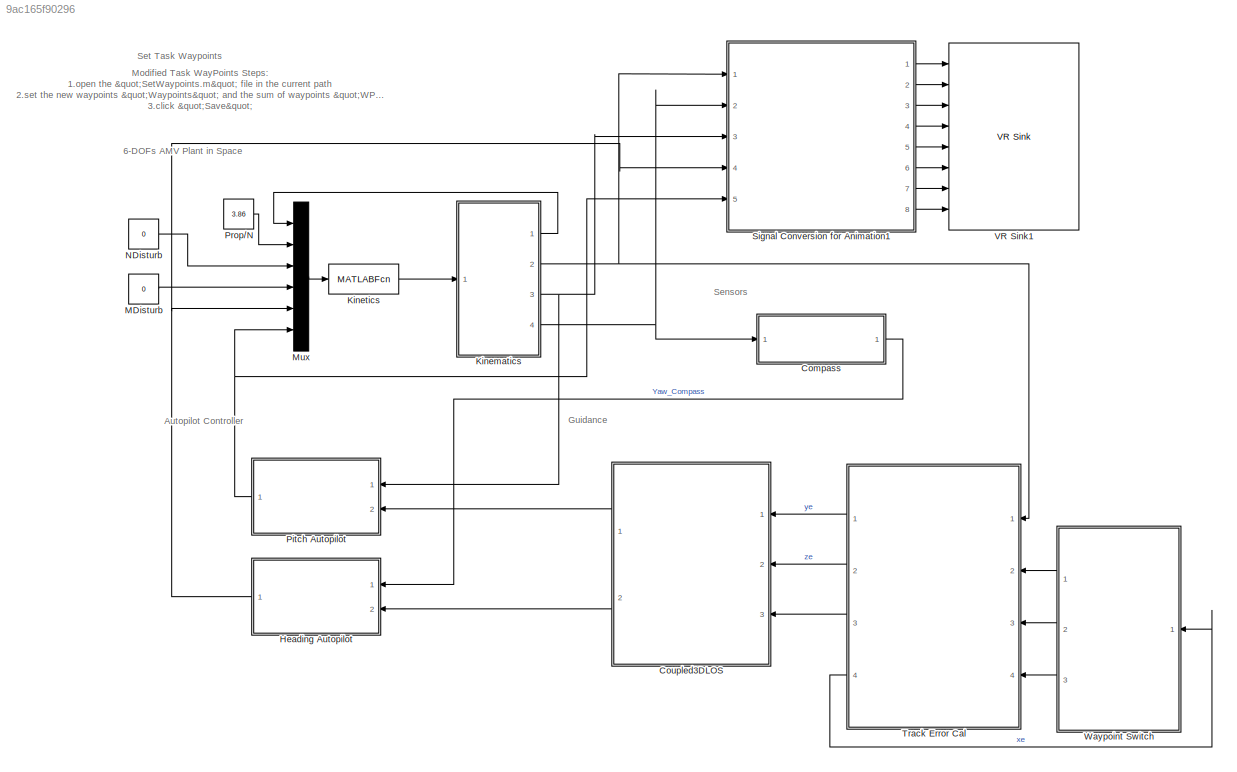
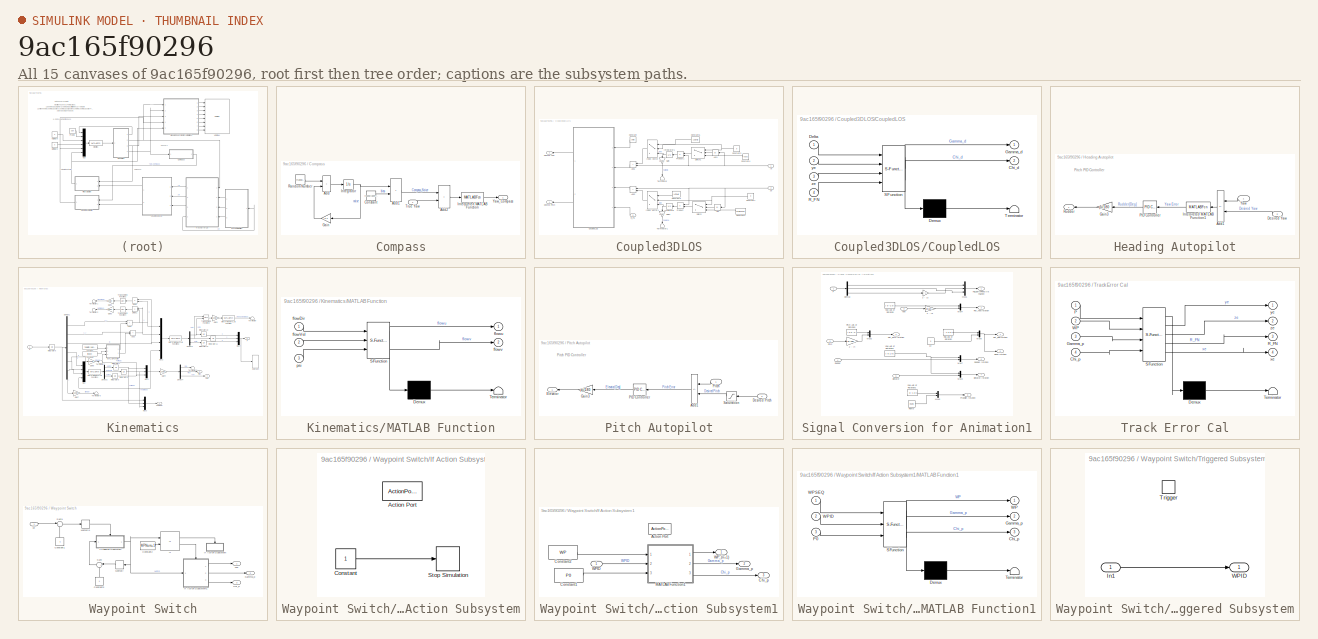
[diagram: thumbnail index - all 15 canvases of the model, root first then tree order]
MODEL slx_9ac165f90296
KIND model
CONFIG AbsTol = auto
CONFIG EnableMultiTasking = off
CONFIG FixedStep = 0.05
CONFIG InitFcn = initModelParam;\nSetWaypoints;
CONFIG MaxStep = auto
CONFIG MinStep = auto
CONFIG RelTol = 1e-3
CONFIG SampleTimeConstraint = Unconstrained
CONFIG SolverName = ode4
CONFIG StartTime = 0.0
CONFIG StopFcn = plotCoupled3DTrack;
CONFIG StopTime = inf
BLOCK [SubSystem] Compass
  Ports = [1, 1]
  RequestExecContextInheritance = off
BLOCK [Sum] Compass/Add
  IconShape = rectangular
  Ports = [2, 1]
BLOCK [Sum] Compass/Add1
  IconShape = rectangular
  Ports = [2, 1]
BLOCK [Sum] Compass/Add2
  IconShape = rectangular
  Ports = [2, 1]
BLOCK [Constant] Compass/Constant
  Value = round(rand*20-10)
BLOCK [Gain] Compass/Gain
  Gain = -0.2
  NameLocation = top
BLOCK [Integrator] Compass/Integrator
  Ports = [1, 1]
BLOCK [MATLABFcn] Compass/Interpreted MATLAB Function
  MATLABFcn = OrientationDegSat
  Ports = [1, 1]
BLOCK [RandomNumber] Compass/Random Number
  SampleTime = 1
  Seed = round(rand*20)
  Variance = 0.05
BLOCK [Inport] Compass/True Yaw
BLOCK [Outport] Compass/Yaw_Compass
BLOCK [SubSystem] Coupled3DLOS
  NameLocation = top
  Ports = [3, 2]
  RequestExecContextInheritance = off
BLOCK [Abs] Coupled3DLOS/Abs
  NameLocation = top
  SaturateOnIntegerOverflow = off
BLOCK [Abs] Coupled3DLOS/Abs1
  NameLocation = top
  SaturateOnIntegerOverflow = off
BLOCK [Sum] Coupled3DLOS/Add1
  IconShape = rectangular
  NameLocation = top
  Ports = [2, 1]
BLOCK [Sum] Coupled3DLOS/Add2
  IconShape = rectangular
  NameLocation = top
  Ports = [2, 1]
BLOCK [Constant] Coupled3DLOS/Constant
  NameLocation = top
  Value = Delta
BLOCK [Constant] Coupled3DLOS/Constant1
  NameLocation = top
  Value = 0
BLOCK [Constant] Coupled3DLOS/Constant2
  NameLocation = top
  Value = Gamma
BLOCK [Constant] Coupled3DLOS/Constant3
  NameLocation = top
  Value = 0
BLOCK [Constant] Coupled3DLOS/Constant4
  NameLocation = top
  Value = Kapa
BLOCK [Constant] Coupled3DLOS/Constant5
  NameLocation = top
  Value = LOSAlg
BLOCK [Constant] Coupled3DLOS/Constant6
  NameLocation = top
  Value = LOSAlg
BLOCK [SubSystem] Coupled3DLOS/CoupledLOS
  ErrorFcn = Stateflow.Translate.translate
  PermitHierarchicalResolution = ExplicitOnly
  Ports = [4, 2]
  RequestExecContextInheritance = off
  SFBlockType = MATLAB Function
  TreatAsAtomicUnit = on
BLOCK [Demux] Coupled3DLOS/CoupledLOS/ Demux 
  Outputs = 1
  Ports = [1, 1]
BLOCK [S-Function] Coupled3DLOS/CoupledLOS/ SFunction 
  EnableBusSupport = on
  FunctionName = sf_sfun
  PortCounts = [4 3]
  Ports = [4, 3]
  SFcnIsStateOwnerBlock = off
  SFunctionDeploymentMode = off
  Tag = Stateflow S-Function 6
BLOCK [Terminator] Coupled3DLOS/CoupledLOS/ Terminator 
BLOCK [Outport] Coupled3DLOS/CoupledLOS/Chi_d
  Port = 2
BLOCK [Inport] Coupled3DLOS/CoupledLOS/Delta
BLOCK [Outport] Coupled3DLOS/CoupledLOS/Gamma_d
BLOCK [Inport] Coupled3DLOS/CoupledLOS/R_FN
  Port = 4
BLOCK [Inport] Coupled3DLOS/CoupledLOS/ye
  Port = 2
BLOCK [Inport] Coupled3DLOS/CoupledLOS/ze
  Port = 3
BLOCK [Outport] Coupled3DLOS/Desired Pitch
BLOCK [Outport] Coupled3DLOS/Desired Yaw
  Port = 2
BLOCK [Gain] Coupled3DLOS/Gain
  Gain = -180/pi/Delta
  NameLocation = left
BLOCK [Gain] Coupled3DLOS/Gain1
  Gain = -180/pi/Delta
  NameLocation = left
BLOCK [MultiPortSwitch] Coupled3DLOS/Index Vector
  InputSameDT = off
  Inputs = 2
  NameLocation = top
  Ports = [3, 1]
  SaturateOnIntegerOverflow = off
BLOCK [MultiPortSwitch] Coupled3DLOS/Index Vector1
  InputSameDT = off
  Inputs = 2
  NameLocation = top
  Ports = [3, 1]
  SaturateOnIntegerOverflow = off
BLOCK [Integrator] Coupled3DLOS/Integrator
  NameLocation = top
  Ports = [1, 1]
BLOCK [Integrator] Coupled3DLOS/Integrator1
  NameLocation = top
  Ports = [1, 1]
BLOCK [Product] Coupled3DLOS/Product
  NameLocation = top
  Ports = [2, 1]
BLOCK [Product] Coupled3DLOS/Product1
  NameLocation = top
  Ports = [2, 1]
BLOCK [Inport] Coupled3DLOS/R_FN
  Port = 3
BLOCK [Switch] Coupled3DLOS/Switch
  Criteria = u2 > Threshold
  InputSameDT = off
  NameLocation = top
  SaturateOnIntegerOverflow = off
  Threshold = 0.5
BLOCK [Switch] Coupled3DLOS/Switch1
  Criteria = u2 > Threshold
  InputSameDT = off
  NameLocation = top
  SaturateOnIntegerOverflow = off
  Threshold = 1
BLOCK [Terminator] Coupled3DLOS/Terminator
  NameLocation = left
BLOCK [Terminator] Coupled3DLOS/Terminator1
  NameLocation = left
BLOCK [Inport] Coupled3DLOS/ye
BLOCK [Inport] Coupled3DLOS/ze
  Port = 2
BLOCK [SubSystem] Heading Autopilot
  Ports = [2, 1]
  RequestExecContextInheritance = off
BLOCK [Sum] Heading Autopilot/Add1
  IconShape = rectangular
  Inputs = -+
  NameLocation = top
  Ports = [2, 1]
BLOCK [Inport] Heading Autopilot/Desired Yaw
  Port = 2
BLOCK [Gain] Heading Autopilot/Gain3
  Gain = pi/180
  NameLocation = top
BLOCK [MATLABFcn] Heading Autopilot/Interpreted MATLAB Function1
  MATLABFcn = OrientationErrorDegSat
  NameLocation = top
  OutputDimensions = 1
  Ports = [1, 1]
BLOCK [Reference] Heading Autopilot/PID Controller  REF=pid_lib/PID Controller
  NameLocation = top
  Ports = [1, 1]
  SourceBlock = pid_lib/PID Controller
  SourceProductBaseCode = SL
  SourceType = PID 1dof
BLOCK [Outport] Heading Autopilot/Rudder
  NameLocation = top
BLOCK [Inport] Heading Autopilot/Yaw
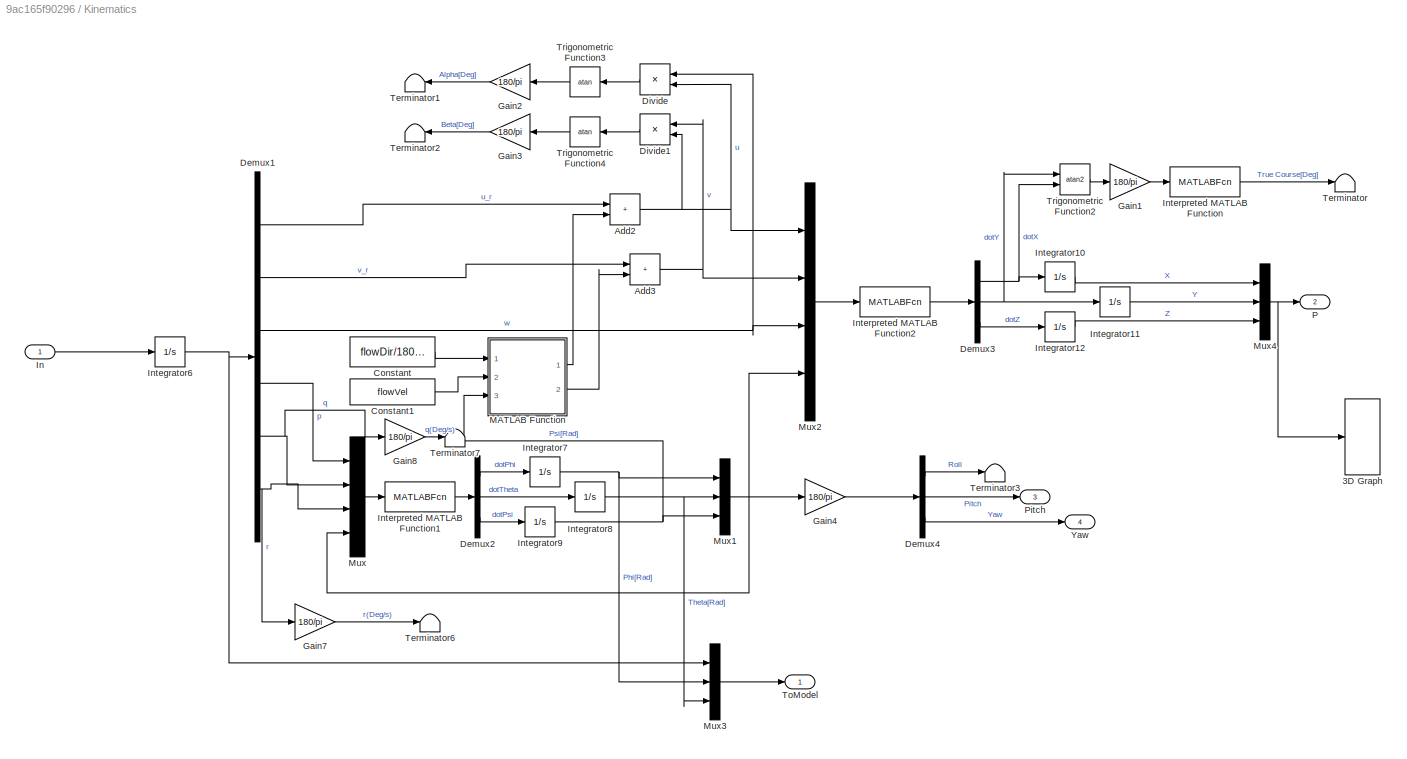
BLOCK [SubSystem] Kinematics
  Ports = [1, 4]
  RequestExecContextInheritance = off
BLOCK [S-Function] Kinematics/3D Graph
  CopyFcn = if exist('sfun3d','file'), sfun3d([],[],[],'CopyBlock'); end
  DeleteFcn = if exist('sfun3d','file'), sfun3d([],[],[],'DeleteBlock'); end
  EnableBusSupport = off
  FunctionName = sfun3d
  LoadFcn = if exist('sfun3d','file'), sfun3d([],[],[],'LoadBlock'); end
  NameChangeFcn = if exist('sfun3d','file'), sfun3d([],[],[],'NameChange'); end
  Parameters = ax,T,np,cp,gd,ls,mk,mx,hd,tb
  Ports = [1]
  SFcnIsStateOwnerBlock = off
  SFunctionDeploymentMode = off
BLOCK [Sum] Kinematics/Add2
  IconShape = rectangular
  Ports = [2, 1]
BLOCK [Sum] Kinematics/Add3
  IconShape = rectangular
  Ports = [2, 1]
BLOCK [Constant] Kinematics/Constant
  Value = flowDir/180*pi
BLOCK [Constant] Kinematics/Constant1
  Value = flowVel
BLOCK [Demux] Kinematics/Demux1
  Outputs = 6
  Ports = [1, 6]
BLOCK [Demux] Kinematics/Demux2
  Outputs = 3
  Ports = [1, 3]
BLOCK [Demux] Kinematics/Demux3
  Outputs = 3
  Ports = [1, 3]
BLOCK [Demux] Kinematics/Demux4
  Outputs = 3
  Ports = [1, 3]
BLOCK [Product] Kinematics/Divide
  Inputs = */
  NameLocation = top
  Ports = [2, 1]
BLOCK [Product] Kinematics/Divide1
  Inputs = */
  NameLocation = top
  Ports = [2, 1]
BLOCK [Gain] Kinematics/Gain1
  Gain = 180/pi
BLOCK [Gain] Kinematics/Gain2
  Gain = 180/pi
  NameLocation = top
BLOCK [Gain] Kinematics/Gain3
  Gain = 180/pi
  NameLocation = top
BLOCK [Gain] Kinematics/Gain4
  Gain = 180/pi
BLOCK [Gain] Kinematics/Gain7
  Gain = 180/pi
BLOCK [Gain] Kinematics/Gain8
  Gain = 180/pi
BLOCK [Inport] Kinematics/In
BLOCK [Integrator] Kinematics/Integrator10
  InitialCondition = x0
  Ports = [1, 1]
BLOCK [Integrator] Kinematics/Integrator11
  InitialCondition = y0
  Ports = [1, 1]
BLOCK [Integrator] Kinematics/Integrator12
  InitialCondition = z0
  Ports = [1, 1]
BLOCK [Integrator] Kinematics/Integrator6
  InitialCondition = [u0; 0; 0; 0; 0; 0]
  Ports = [1, 1]
BLOCK [Integrator] Kinematics/Integrator7
  Ports = [1, 1]
BLOCK [Integrator] Kinematics/Integrator8
  InitialCondition = pitch0/180*pi
  Ports = [1, 1]
BLOCK [Integrator] Kinematics/Integrator9
  InitialCondition = yaw0*pi/180
  Ports = [1, 1]
  WrapState = on
  WrappedStateLowerValue = 0
  WrappedStateUpperValue = 6.2832
BLOCK [MATLABFcn] Kinematics/Interpreted MATLAB Function
  MATLABFcn = OrientationDegSat
  Ports = [1, 1]
BLOCK [MATLABFcn] Kinematics/Interpreted MATLAB Function1
  MATLABFcn = TMatrix
  OutputDimensions = 3
  Ports = [1, 1]
BLOCK [MATLABFcn] Kinematics/Interpreted MATLAB Function2
  MATLABFcn = RMatrix
  OutputDimensions = 3
  Ports = [1, 1]
BLOCK [SubSystem] Kinematics/MATLAB Function
  ErrorFcn = Stateflow.Translate.translate
  PermitHierarchicalResolution = ExplicitOnly
  Ports = [3, 2]
  RequestExecContextInheritance = off
  SFBlockType = MATLAB Function
  TreatAsAtomicUnit = on
BLOCK [Demux] Kinematics/MATLAB Function/ Demux 
  Outputs = 1
  Ports = [1, 1]
BLOCK [S-Function] Kinematics/MATLAB Function/ SFunction 
  EnableBusSupport = on
  FunctionName = sf_sfun
  PortCounts = [3 3]
  Ports = [3, 3]
  SFcnIsStateOwnerBlock = off
  SFunctionDeploymentMode = off
  Tag = Stateflow S-Function 3
BLOCK [Terminator] Kinematics/MATLAB Function/ Terminator 
BLOCK [Inport] Kinematics/MATLAB Function/flowDir
BLOCK [Inport] Kinematics/MATLAB Function/flowVel
  Port = 2
BLOCK [Outport] Kinematics/MATLAB Function/flowu
BLOCK [Outport] Kinematics/MATLAB Function/flowv
  Port = 2
BLOCK [Inport] Kinematics/MATLAB Function/psi
  Port = 3
BLOCK [Mux] Kinematics/Mux
  DisplayOption = bar
  Ports = [4, 1]
BLOCK [Mux] Kinematics/Mux1
  DisplayOption = bar
  Inputs = 3
  Ports = [3, 1]
BLOCK [Mux] Kinematics/Mux2
  DisplayOption = bar
  Ports = [4, 1]
BLOCK [Mux] Kinematics/Mux3
  DisplayOption = bar
  Inputs = 3
  Ports = [3, 1]
BLOCK [Mux] Kinematics/Mux4
  DisplayOption = bar
  Inputs = 3
  Ports = [3, 1]
BLOCK [Outport] Kinematics/P
  Port = 2
BLOCK [Outport] Kinematics/Pitch
  Port = 3
BLOCK [Terminator] Kinematics/Terminator
BLOCK [Terminator] Kinematics/Terminator1
  NameLocation = top
BLOCK [Terminator] Kinematics/Terminator2
  NameLocation = top
BLOCK [Terminator] Kinematics/Terminator3
BLOCK [Terminator] Kinematics/Terminator6
BLOCK [Terminator] Kinematics/Terminator7
BLOCK [Outport] Kinematics/ToModel
BLOCK [Trigonometry] Kinematics/Trigonometric Function2
  Operator = atan2
  Ports = [2, 1]
BLOCK [Trigonometry] Kinematics/Trigonometric Function3
  NameLocation = top
  Operator = atan
  Ports = [1, 1]
BLOCK [Trigonometry] Kinematics/Trigonometric Function4
  NameLocation = top
  Operator = atan
  Ports = [1, 1]
BLOCK [Outport] Kinematics/Yaw
  Port = 4
BLOCK [MATLABFcn] Kinetics
  MATLABFcn = AuvMathModel
  OutputDimensions = 6
  OutputSignalType = real
  Ports = [1, 1]
BLOCK [Constant] MDisturb
  Value = 0
BLOCK [Mux] Mux
  DisplayOption = bar
  Inputs = 6
  Ports = [6, 1]
BLOCK [Constant] NDisturb
  Value = 0
BLOCK [SubSystem] Pitch Autopilot
  Ports = [2, 1]
  RequestExecContextInheritance = off
BLOCK [Sum] Pitch Autopilot/Add1
  IconShape = rectangular
  Inputs = +-
  NameLocation = top
  Ports = [2, 1]
BLOCK [Inport] Pitch Autopilot/Desired Pitch
  Port = 2
BLOCK [Outport] Pitch Autopilot/Elevator
  NameLocation = top
BLOCK [Gain] Pitch Autopilot/Gain3
  Gain = pi/180
  NameLocation = top
BLOCK [Reference] Pitch Autopilot/PID Controller  REF=pid_lib/PID Controller
  NameLocation = top
  Ports = [1, 1]
  SourceBlock = pid_lib/PID Controller
  SourceProductBaseCode = SL
  SourceType = PID 1dof
BLOCK [Inport] Pitch Autopilot/Pitch
BLOCK [Saturate] Pitch Autopilot/Saturation
  LowerLimit = -25
  NameLocation = top
  UpperLimit = 25
BLOCK [Constant] Prop//N
  Value = 3.86
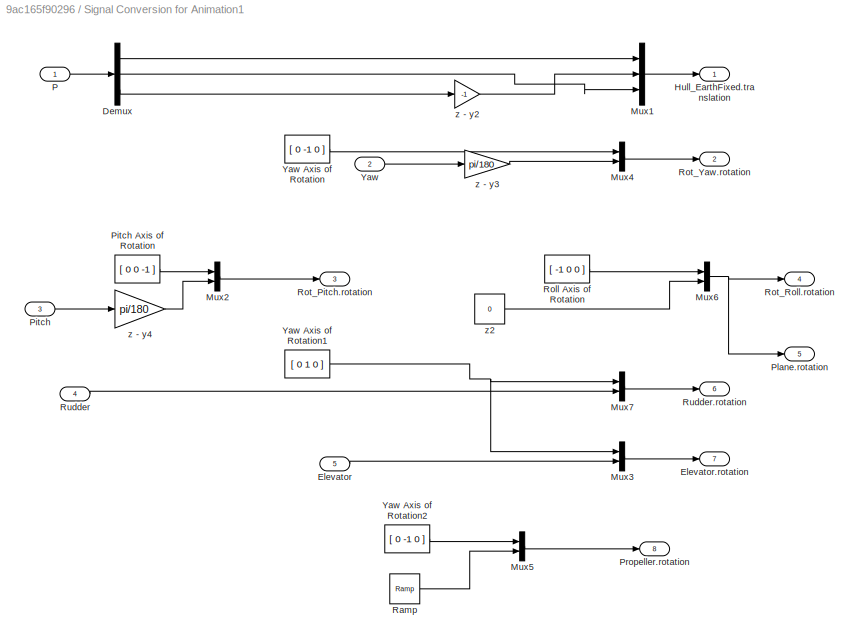
BLOCK [SubSystem] Signal Conversion for Animation1
  Ports = [5, 8]
  RequestExecContextInheritance = off
BLOCK [Demux] Signal Conversion for Animation1/Demux
  Outputs = 3
  Ports = [1, 3]
BLOCK [Inport] Signal Conversion for Animation1/Elevator
  Port = 5
BLOCK [Outport] Signal Conversion for Animation1/Elevator.rotation
  Port = 7
BLOCK [Outport] Signal Conversion for Animation1/Hull_EarthFixed.translation
BLOCK [Mux] Signal Conversion for Animation1/Mux1
  DisplayOption = bar
  Inputs = 3
  Ports = [3, 1]
BLOCK [Mux] Signal Conversion for Animation1/Mux2
  DisplayOption = bar
  Inputs = 2
  Ports = [2, 1]
BLOCK [Mux] Signal Conversion for Animation1/Mux3
  DisplayOption = bar
  Inputs = 2
  Ports = [2, 1]
BLOCK [Mux] Signal Conversion for Animation1/Mux4
  DisplayOption = bar
  Inputs = 2
  Ports = [2, 1]
BLOCK [Mux] Signal Conversion for Animation1/Mux5
  DisplayOption = bar
  Inputs = 2
  Ports = [2, 1]
BLOCK [Mux] Signal Conversion for Animation1/Mux6
  DisplayOption = bar
  Inputs = 2
  Ports = [2, 1]
BLOCK [Mux] Signal Conversion for Animation1/Mux7
  DisplayOption = bar
  Inputs = 2
  Ports = [2, 1]
BLOCK [Inport] Signal Conversion for Animation1/P
BLOCK [Inport] Signal Conversion for Animation1/Pitch
  Port = 3
BLOCK [Constant] Signal Conversion for Animation1/Pitch Axis of Rotation
  NameLocation = top
  Value = [ 0 0 -1 ]
BLOCK [Outport] Signal Conversion for Animation1/Plane.rotation
  Port = 5
BLOCK [Outport] Signal Conversion for Animation1/Propeller.rotation
  Port = 8
BLOCK [Reference] Signal Conversion for Animation1/Ramp  REF=simulink/Sources/Ramp
  Ports = [0, 1]
  SourceBlock = simulink/Sources/Ramp
  SourceProductBaseCode = SL
  SourceType = Ramp
BLOCK [Constant] Signal Conversion for Animation1/Roll Axis of Rotation
  NameLocation = top
  Value = [ -1 0 0 ]
BLOCK [Outport] Signal Conversion for Animation1/Rot_Pitch.rotation
  Port = 3
BLOCK [Outport] Signal Conversion for Animation1/Rot_Roll.rotation
  Port = 4
BLOCK [Outport] Signal Conversion for Animation1/Rot_Yaw.rotation
  Port = 2
BLOCK [Inport] Signal Conversion for Animation1/Rudder
  Port = 4
BLOCK [Outport] Signal Conversion for Animation1/Rudder.rotation
  Port = 6
BLOCK [Inport] Signal Conversion for Animation1/Yaw
  Port = 2
BLOCK [Constant] Signal Conversion for Animation1/Yaw Axis of Rotation
  NameLocation = top
  Value = [ 0 -1 0 ]
BLOCK [Constant] Signal Conversion for Animation1/Yaw Axis of Rotation1
  NameLocation = top
  Value = [ 0 1 0 ]
BLOCK [Constant] Signal Conversion for Animation1/Yaw Axis of Rotation2
  NameLocation = top
  Value = [ 0 -1 0 ]
BLOCK [Gain] Signal Conversion for Animation1/z - y2
  Gain = -1
  NameLocation = top
BLOCK [Gain] Signal Conversion for Animation1/z - y3
  Gain = pi/180
  NameLocation = top
BLOCK [Gain] Signal Conversion for Animation1/z - y4
  Gain = pi/180
  NameLocation = top
BLOCK [Constant] Signal Conversion for Animation1/z2
  Value = 0
BLOCK [SubSystem] Track Error Cal
  ErrorFcn = Stateflow.Translate.translate
  PermitHierarchicalResolution = ExplicitOnly
  Ports = [4, 4]
  RequestExecContextInheritance = off
  SFBlockType = MATLAB Function
  TreatAsAtomicUnit = on
BLOCK [Demux] Track Error Cal/ Demux 
  Outputs = 1
  Ports = [1, 1]
BLOCK [S-Function] Track Error Cal/ SFunction 
  EnableBusSupport = on
  FunctionName = sf_sfun
  PortCounts = [4 5]
  Ports = [4, 5]
  SFcnIsStateOwnerBlock = off
  SFunctionDeploymentMode = off
  Tag = Stateflow S-Function 2
BLOCK [Terminator] Track Error Cal/ Terminator 
BLOCK [Inport] Track Error Cal/Chi_p
  Port = 4
BLOCK [Inport] Track Error Cal/Gamma_p
  Port = 3
BLOCK [Inport] Track Error Cal/P
BLOCK [Outport] Track Error Cal/R_FN
  Port = 3
BLOCK [Inport] Track Error Cal/WP
  Port = 2
BLOCK [Outport] Track Error Cal/xe
  Port = 4
BLOCK [Outport] Track Error Cal/ye
BLOCK [Outport] Track Error Cal/ze
  Port = 2
BLOCK [Reference] VR Sink1  REF=vrlib/VR Sink
  InstantiateOnLoad = on
  Ports = [8]
  SourceBlock = vrlib/VR Sink
  SourceProductBaseCode = SL
  SourceType = Virtual Reality Sink
BLOCK [SubSystem] Waypoint Switch
  Ports = [1, 3]
  RequestExecContextInheritance = off
BLOCK [Outport] Waypoint Switch/Chi_p
  Port = 3
BLOCK [Constant] Waypoint Switch/Constant1
  NameLocation = right
  Value = 4
BLOCK [Constant] Waypoint Switch/Constant2
  Value = WPNum+1
BLOCK [Constant] Waypoint Switch/Constant3
  NameLocation = right
BLOCK [Outport] Waypoint Switch/Gamma_p
  Port = 2
BLOCK [If] Waypoint Switch/If
  IfExpression = u1 >= u2
  NumInputs = 2
  Ports = [2, 2]
BLOCK [SubSystem] Waypoint Switch/If Action Subsystem
  Ports = [0, 0, 0, 0, 0, 0, 0, 1]
  RequestExecContextInheritance = off
  TreatAsAtomicUnit = on
BLOCK [ActionPort] Waypoint Switch/If Action Subsystem/Action Port
  ActionPortLabel = if(u1 >= u2)
BLOCK [Constant] Waypoint Switch/If Action Subsystem/Constant
BLOCK [Stop] Waypoint Switch/If Action Subsystem/Stop Simulation
BLOCK [SubSystem] Waypoint Switch/If Action Subsystem1
  Ports = [1, 3, 0, 0, 0, 0, 0, 1]
  RequestExecContextInheritance = off
  TreatAsAtomicUnit = on
BLOCK [ActionPort] Waypoint Switch/If Action Subsystem1/Action Port
  ActionPortLabel = else
BLOCK [Outport] Waypoint Switch/If Action Subsystem1/Chi_p
  Port = 3
BLOCK [Constant] Waypoint Switch/If Action Subsystem1/Constant1
  Value = P0
BLOCK [Constant] Waypoint Switch/If Action Subsystem1/Constant2
  Value = WP
BLOCK [Outport] Waypoint Switch/If Action Subsystem1/Gamma_p
  Port = 2
BLOCK [SubSystem] Waypoint Switch/If Action Subsystem1/MATLAB Function1
  ErrorFcn = Stateflow.Translate.translate
  PermitHierarchicalResolution = ExplicitOnly
  Ports = [3, 3]
  RequestExecContextInheritance = off
  SFBlockType = MATLAB Function
  TreatAsAtomicUnit = on
BLOCK [Demux] Waypoint Switch/If Action Subsystem1/MATLAB Function1/ Demux 
  Outputs = 1
  Ports = [1, 1]
BLOCK [S-Function] Waypoint Switch/If Action Subsystem1/MATLAB Function1/ SFunction 
  EnableBusSupport = on
  FunctionName = sf_sfun
  PortCounts = [3 4]
  Ports = [3, 4]
  SFcnIsStateOwnerBlock = off
  SFunctionDeploymentMode = off
  Tag = Stateflow S-Function 1
BLOCK [Terminator] Waypoint Switch/If Action Subsystem1/MATLAB Function1/ Terminator 
BLOCK [Outport] Waypoint Switch/If Action Subsystem1/MATLAB Function1/Chi_p
  Port = 3
BLOCK [Outport] Waypoint Switch/If Action Subsystem1/MATLAB Function1/Gamma_p
  Port = 2
BLOCK [Inport] Waypoint Switch/If Action Subsystem1/MATLAB Function1/P0
  Port = 3
BLOCK [Outport] Waypoint Switch/If Action Subsystem1/MATLAB Function1/WP
BLOCK [Inport] Waypoint Switch/If Action Subsystem1/MATLAB Function1/WPID
  Port = 2
BLOCK [Inport] Waypoint Switch/If Action Subsystem1/MATLAB Function1/WPSEQ
BLOCK [Inport] Waypoint Switch/If Action Subsystem1/WPID
BLOCK [Outport] Waypoint Switch/If Action Subsystem1/WP_(n+1)
BLOCK [Memory] Waypoint Switch/Memory
  InheritSampleTime = on
  InitialCondition = 1
  NameLocation = top
BLOCK [Memory] Waypoint Switch/Memory1
  InheritSampleTime = on
  InitialCondition = 5
BLOCK [Sum] Waypoint Switch/Sum
  Inputs = |++
  NameLocation = top
  Ports = [2, 1]
BLOCK [Sum] Waypoint Switch/Sum1
  Inputs = |+-
  Ports = [2, 1]
BLOCK [SubSystem] Waypoint Switch/Triggered Subsystem
  Ports = [1, 1, 0, 1]
  RequestExecContextInheritance = off
  TreatAsAtomicUnit = on
BLOCK [Inport] Waypoint Switch/Triggered Subsystem/In1
BLOCK [TriggerPort] Waypoint Switch/Triggered Subsystem/Trigger
  Ports = []
  StatesWhenEnabling = held
  TriggerType = falling
  VariantControl = Variant
BLOCK [Outport] Waypoint Switch/Triggered Subsystem/WPID
  InitialOutput = 1
BLOCK [Outport] Waypoint Switch/WP
BLOCK [Inport] Waypoint Switch/xe
ANNOTATION (root): 6-DOFs AMV Plant in Space
ANNOTATION (root): Modified Task WayPoints Steps: 1.open the "SetWaypoints.m" file in the current path 2.set the new waypoints "Waypoints" and the sum of waypoints "WPNum" 3.click "Save"
ANNOTATION (root): Autopilot Controller
ANNOTATION (root): Guidance
ANNOTATION (root): Sensors
ANNOTATION (root): Set Task Waypoints
ANNOTATION Heading Autopilot: Pitch PID Controller
ANNOTATION Pitch Autopilot: Pitch PID Controller
LINE Compass/Add1:1 -> Compass/Add2:1
LINE Compass/Add2:1 -> Compass/Interpreted MATLAB Function:1
LINE Compass/Add:1 -> Compass/Integrator:1
LINE Compass/Constant:1 -> Compass/Add1:2
LINE Compass/Gain:1 -> Compass/Add:2
NET Compass/Integrator:1 -> Compass/Add1:1, Compass/Gain:1
LINE Compass/Interpreted MATLAB Function:1 -> Compass/Yaw_Compass:1
LINE Compass/Random Number:1 -> Compass/Add:1
LINE Compass/True Yaw:1 -> Compass/Add2:2
LINE Compass:1 -> Heading Autopilot:1
LINE Coupled3DLOS/Abs1:1 -> Coupled3DLOS/Switch1:2
LINE Coupled3DLOS/Abs:1 -> Coupled3DLOS/Switch:2
LINE Coupled3DLOS/Add1:1 -> Coupled3DLOS/CoupledLOS:2
LINE Coupled3DLOS/Add2:1 -> Coupled3DLOS/CoupledLOS:3
NET Coupled3DLOS/Constant1:1 -> Coupled3DLOS/Index Vector1:2, Coupled3DLOS/Switch:1
LINE Coupled3DLOS/Constant2:1 -> Coupled3DLOS/Switch:3
NET Coupled3DLOS/Constant3:1 -> Coupled3DLOS/Index Vector:2, Coupled3DLOS/Switch1:1
LINE Coupled3DLOS/Constant4:1 -> Coupled3DLOS/Switch1:3
LINE Coupled3DLOS/Constant5:1 -> Coupled3DLOS/Index Vector:1
LINE Coupled3DLOS/Constant6:1 -> Coupled3DLOS/Index Vector1:1
LINE Coupled3DLOS/Constant:1 -> Coupled3DLOS/CoupledLOS:1
LINE Coupled3DLOS/CoupledLOS:1 -> Coupled3DLOS/Desired Yaw:1
LINE Coupled3DLOS/CoupledLOS:2 -> Coupled3DLOS/Desired Pitch:1
LINE Coupled3DLOS/Gain1:1 -> Coupled3DLOS/Terminator1:1
LINE Coupled3DLOS/Gain:1 -> Coupled3DLOS/Terminator:1
LINE Coupled3DLOS/Index Vector1:1 -> Coupled3DLOS/Add2:2
LINE Coupled3DLOS/Index Vector:1 -> Coupled3DLOS/Add1:1
NET Coupled3DLOS/Integrator1:1 -> Coupled3DLOS/Gain:1, Coupled3DLOS/Index Vector:3
NET Coupled3DLOS/Integrator:1 -> Coupled3DLOS/Gain1:1, Coupled3DLOS/Index Vector1:3
LINE Coupled3DLOS/Product1:1 -> Coupled3DLOS/Integrator1:1
LINE Coupled3DLOS/Product:1 -> Coupled3DLOS/Integrator:1
LINE Coupled3DLOS/R_FN:1 -> Coupled3DLOS/CoupledLOS:4
LINE Coupled3DLOS/Switch1:1 -> Coupled3DLOS/Product1:1
LINE Coupled3DLOS/Switch:1 -> Coupled3DLOS/Product:2
NET Coupled3DLOS/ye:1 -> Coupled3DLOS/Abs1:1, Coupled3DLOS/Add1:2, Coupled3DLOS/Product1:2
NET Coupled3DLOS/ze:1 -> Coupled3DLOS/Abs:1, Coupled3DLOS/Add2:1, Coupled3DLOS/Product:1
LINE Coupled3DLOS:1 -> Pitch Autopilot:2
LINE Coupled3DLOS:2 -> Heading Autopilot:2
LINE Heading Autopilot/Add1:1 -> Heading Autopilot/Interpreted MATLAB Function1:1
LINE Heading Autopilot/Desired Yaw:1 -> Heading Autopilot/Add1:2
LINE Heading Autopilot/Gain3:1 -> Heading Autopilot/Rudder:1
LINE Heading Autopilot/Interpreted MATLAB Function1:1 -> Heading Autopilot/PID Controller:1
LINE Heading Autopilot/PID Controller:1 -> Heading Autopilot/Gain3:1
LINE Heading Autopilot/Yaw:1 -> Heading Autopilot/Add1:1
NET Heading Autopilot:1 -> Mux:5, Signal Conversion for Animation1:4
NET Kinematics/Add2:1 -> Kinematics/Divide1:2, Kinematics/Divide:2, Kinematics/Mux2:1
NET Kinematics/Add3:1 -> Kinematics/Divide1:1, Kinematics/Mux2:2
LINE Kinematics/Constant1:1 -> Kinematics/MATLAB Function:2
LINE Kinematics/Constant:1 -> Kinematics/MATLAB Function:1
LINE Kinematics/Demux1:1 -> Kinematics/Add2:1
LINE Kinematics/Demux1:2 -> Kinematics/Add3:1
NET Kinematics/Demux1:3 -> Kinematics/Divide:1, Kinematics/Mux2:3
LINE Kinematics/Demux1:4 -> Kinematics/Mux:1
NET Kinematics/Demux1:5 -> Kinematics/Gain8:1, Kinematics/Mux:2
NET Kinematics/Demux1:6 -> Kinematics/Gain7:1, Kinematics/Mux:3
LINE Kinematics/Demux2:1 -> Kinematics/Integrator7:1
LINE Kinematics/Demux2:2 -> Kinematics/Integrator8:1
LINE Kinematics/Demux2:3 -> Kinematics/Integrator9:1
NET Kinematics/Demux3:1 -> Kinematics/Integrator10:1, Kinematics/Trigonometric Function2:2
NET Kinematics/Demux3:2 -> Kinematics/Integrator11:1, Kinematics/Trigonometric Function2:1
LINE Kinematics/Demux3:3 -> Kinematics/Integrator12:1
LINE Kinematics/Demux4:1 -> Kinematics/Terminator3:1
LINE Kinematics/Demux4:2 -> Kinematics/Pitch:1
LINE Kinematics/Demux4:3 -> Kinematics/Yaw:1
LINE Kinematics/Divide1:1 -> Kinematics/Trigonometric Function4:1
LINE Kinematics/Divide:1 -> Kinematics/Trigonometric Function3:1
LINE Kinematics/Gain1:1 -> Kinematics/Interpreted MATLAB Function:1
LINE Kinematics/Gain2:1 -> Kinematics/Terminator1:1
LINE Kinematics/Gain3:1 -> Kinematics/Terminator2:1
LINE Kinematics/Gain4:1 -> Kinematics/Demux4:1
LINE Kinematics/Gain7:1 -> Kinematics/Terminator6:1
LINE Kinematics/Gain8:1 -> Kinematics/Terminator7:1
LINE Kinematics/In:1 -> Kinematics/Integrator6:1
LINE Kinematics/Integrator10:1 -> Kinematics/Mux4:1
LINE Kinematics/Integrator11:1 -> Kinematics/Mux4:2
LINE Kinematics/Integrator12:1 -> Kinematics/Mux4:3
NET Kinematics/Integrator6:1 -> Kinematics/Demux1:1, Kinematics/Mux3:1
NET Kinematics/Integrator7:1 -> Kinematics/Mux1:1, Kinematics/Mux3:2
NET Kinematics/Integrator8:1 -> Kinematics/Mux1:2, Kinematics/Mux3:3
NET Kinematics/Integrator9:1 -> Kinematics/MATLAB Function:3, Kinematics/Mux1:3
LINE Kinematics/Interpreted MATLAB Function1:1 -> Kinematics/Demux2:1
LINE Kinematics/Interpreted MATLAB Function2:1 -> Kinematics/Demux3:1
LINE Kinematics/Interpreted MATLAB Function:1 -> Kinematics/Terminator:1
LINE Kinematics/MATLAB Function:1 -> Kinematics/Add2:2
LINE Kinematics/MATLAB Function:2 -> Kinematics/Add3:2
NET Kinematics/Mux1:1 -> Kinematics/Gain4:1, Kinematics/Mux2:4, Kinematics/Mux:4
LINE Kinematics/Mux2:1 -> Kinematics/Interpreted MATLAB Function2:1
LINE Kinematics/Mux3:1 -> Kinematics/ToModel:1
NET Kinematics/Mux4:1 -> Kinematics/3D Graph:1, Kinematics/P:1
LINE Kinematics/Mux:1 -> Kinematics/Interpreted MATLAB Function1:1
LINE Kinematics/Trigonometric Function2:1 -> Kinematics/Gain1:1
LINE Kinematics/Trigonometric Function3:1 -> Kinematics/Gain2:1
LINE Kinematics/Trigonometric Function4:1 -> Kinematics/Gain3:1
LINE Kinematics:1 -> Mux:1
NET Kinematics:2 -> Signal Conversion for Animation1:1, Track Error Cal:1
NET Kinematics:3 -> Pitch Autopilot:1, Signal Conversion for Animation1:3
NET Kinematics:4 -> Compass:1, Signal Conversion for Animation1:2
LINE Kinetics:1 -> Kinematics:1
LINE MDisturb:1 -> Mux:4
LINE Mux:1 -> Kinetics:1
LINE NDisturb:1 -> Mux:3
LINE Pitch Autopilot/Add1:1 -> Pitch Autopilot/PID Controller:1
LINE Pitch Autopilot/Desired Pitch:1 -> Pitch Autopilot/Saturation:1
LINE Pitch Autopilot/Gain3:1 -> Pitch Autopilot/Elevator:1
LINE Pitch Autopilot/PID Controller:1 -> Pitch Autopilot/Gain3:1
LINE Pitch Autopilot/Pitch:1 -> Pitch Autopilot/Add1:1
LINE Pitch Autopilot/Saturation:1 -> Pitch Autopilot/Add1:2
NET Pitch Autopilot:1 -> Mux:6, Signal Conversion for Animation1:5
LINE Prop//N:1 -> Mux:2
LINE Signal Conversion for Animation1/Demux:1 -> Signal Conversion for Animation1/Mux1:1
LINE Signal Conversion for Animation1/Demux:2 -> Signal Conversion for Animation1/Mux1:3
LINE Signal Conversion for Animation1/Demux:3 -> Signal Conversion for Animation1/z - y2:1
LINE Signal Conversion for Animation1/Elevator:1 -> Signal Conversion for Animation1/Mux3:2
LINE Signal Conversion for Animation1/Mux1:1 -> Signal Conversion for Animation1/Hull_EarthFixed.translation:1
LINE Signal Conversion for Animation1/Mux2:1 -> Signal Conversion for Animation1/Rot_Pitch.rotation:1
LINE Signal Conversion for Animation1/Mux3:1 -> Signal Conversion for Animation1/Elevator.rotation:1
LINE Signal Conversion for Animation1/Mux4:1 -> Signal Conversion for Animation1/Rot_Yaw.rotation:1
LINE Signal Conversion for Animation1/Mux5:1 -> Signal Conversion for Animation1/Propeller.rotation:1
NET Signal Conversion for Animation1/Mux6:1 -> Signal Conversion for Animation1/Plane.rotation:1, Signal Conversion for Animation1/Rot_Roll.rotation:1
LINE Signal Conversion for Animation1/Mux7:1 -> Signal Conversion for Animation1/Rudder.rotation:1
LINE Signal Conversion for Animation1/P:1 -> Signal Conversion for Animation1/Demux:1
LINE Signal Conversion for Animation1/Pitch Axis of Rotation:1 -> Signal Conversion for Animation1/Mux2:1
LINE Signal Conversion for Animation1/Pitch:1 -> Signal Conversion for Animation1/z - y4:1
LINE Signal Conversion for Animation1/Ramp:1 -> Signal Conversion for Animation1/Mux5:2
LINE Signal Conversion for Animation1/Roll Axis of Rotation:1 -> Signal Conversion for Animation1/Mux6:1
LINE Signal Conversion for Animation1/Rudder:1 -> Signal Conversion for Animation1/Mux7:2
NET Signal Conversion for Animation1/Yaw Axis of Rotation1:1 -> Signal Conversion for Animation1/Mux3:1, Signal Conversion for Animation1/Mux7:1
LINE Signal Conversion for Animation1/Yaw Axis of Rotation2:1 -> Signal Conversion for Animation1/Mux5:1
LINE Signal Conversion for Animation1/Yaw Axis of Rotation:1 -> Signal Conversion for Animation1/Mux4:1
LINE Signal Conversion for Animation1/Yaw:1 -> Signal Conversion for Animation1/z - y3:1
LINE Signal Conversion for Animation1/z - y2:1 -> Signal Conversion for Animation1/Mux1:2
LINE Signal Conversion for Animation1/z - y3:1 -> Signal Conversion for Animation1/Mux4:2
LINE Signal Conversion for Animation1/z - y4:1 -> Signal Conversion for Animation1/Mux2:2
LINE Signal Conversion for Animation1/z2:1 -> Signal Conversion for Animation1/Mux6:2
LINE Signal Conversion for Animation1:1 -> VR Sink1:1
LINE Signal Conversion for Animation1:2 -> VR Sink1:2
LINE Signal Conversion for Animation1:3 -> VR Sink1:3
LINE Signal Conversion for Animation1:4 -> VR Sink1:4
LINE Signal Conversion for Animation1:5 -> VR Sink1:5
LINE Signal Conversion for Animation1:6 -> VR Sink1:6
LINE Signal Conversion for Animation1:7 -> VR Sink1:7
LINE Signal Conversion for Animation1:8 -> VR Sink1:8
LINE Track Error Cal:1 -> Coupled3DLOS:1
LINE Track Error Cal:2 -> Coupled3DLOS:2
LINE Track Error Cal:3 -> Coupled3DLOS:3
LINE Track Error Cal:4 -> Waypoint Switch:1
LINE Waypoint Switch/Constant1:1 -> Waypoint Switch/Sum1:2
LINE Waypoint Switch/Constant2:1 -> Waypoint Switch/If:2
LINE Waypoint Switch/Constant3:1 -> Waypoint Switch/Sum:2
LINE Waypoint Switch/If Action Subsystem/Constant:1 -> Waypoint Switch/If Action Subsystem/Stop Simulation:1
LINE Waypoint Switch/If Action Subsystem1/Constant1:1 -> Waypoint Switch/If Action Subsystem1/MATLAB Function1:3
LINE Waypoint Switch/If Action Subsystem1/Constant2:1 -> Waypoint Switch/If Action Subsystem1/MATLAB Function1:1
LINE Waypoint Switch/If Action Subsystem1/MATLAB Function1:1 -> Waypoint Switch/If Action Subsystem1/WP_(n+1):1
LINE Waypoint Switch/If Action Subsystem1/MATLAB Function1:2 -> Waypoint Switch/If Action Subsystem1/Gamma_p:1
LINE Waypoint Switch/If Action Subsystem1/MATLAB Function1:3 -> Waypoint Switch/If Action Subsystem1/Chi_p:1
LINE Waypoint Switch/If Action Subsystem1/WPID:1 -> Waypoint Switch/If Action Subsystem1/MATLAB Function1:2
LINE Waypoint Switch/If Action Subsystem1:1 -> Waypoint Switch/WP:1
LINE Waypoint Switch/If Action Subsystem1:2 -> Waypoint Switch/Gamma_p:1
LINE Waypoint Switch/If Action Subsystem1:3 -> Waypoint Switch/Chi_p:1
LINE Waypoint Switch/If:1 -> Waypoint Switch/If Action Subsystem:ifaction
LINE Waypoint Switch/If:2 -> Waypoint Switch/If Action Subsystem1:ifaction
LINE Waypoint Switch/Memory1:1 -> Waypoint Switch/Triggered Subsystem:trigger
LINE Waypoint Switch/Memory:1 -> Waypoint Switch/Sum:1
LINE Waypoint Switch/Sum1:1 -> Waypoint Switch/Memory1:1
LINE Waypoint Switch/Sum:1 -> Waypoint Switch/Triggered Subsystem:1
LINE Waypoint Switch/Triggered Subsystem/In1:1 -> Waypoint Switch/Triggered Subsystem/WPID:1
NET Waypoint Switch/Triggered Subsystem:1 -> Waypoint Switch/If Action Subsystem1:1, Waypoint Switch/If:1, Waypoint Switch/Memory:1
LINE Waypoint Switch/xe:1 -> Waypoint Switch/Sum1:1
LINE Waypoint Switch:1 -> Track Error Cal:2
LINE Waypoint Switch:2 -> Track Error Cal:3
LINE Waypoint Switch:3 -> Track Error Cal:4
note: NET lines group one-source signal fan-out (src -> all destinations, sorted); 1:1 wires keep LINE
CHART Waypoint Switch/If Action
Subsystem1/MATLAB Function1 states=1 transitions=1
  STATE_LABEL 'eML_blk_kernel()'
  STATE_LABEL "SCRIPT:\nfunction [WP,Gamma_p,Chi_p] = fcn(WPSEQ,WPID,P0)\nWP = WPSEQ(WPID,:)';\n\nif WPID == 1\n    dx = WPSEQ(1,1)-P0(1);dy = WPSEQ(1,2)-P0(2);dz = WPSEQ(1,3)-P0(3);\nelse\n    dp = WPSEQ(WPID,:)-WPSEQ(WPID-1,:);\n    dx = dp(1);dy = dp(2);dz = dp(3);\nend\n\nGamma_p = atan2(dy,dx);\nChi_p = -atan(dz/sqrt(dx*dx+dy*dy));\n\nif Gamma_p<0\n    Gamma_p = Gamma_p + 2*pi;\nend\n"
CHART Track Error Cal states=1 transitions=1
  STATE_LABEL 'eML_blk_kernel()'
  STATE_LABEL "SCRIPT:\nfunction [ye,ze,R_FN,xe] = fcn(P,WP,Gamma_p,Chi_p)\nsg = sin(Gamma_p);cg = cos(Gamma_p);\nsc = sin(Chi_p);cc = cos(Chi_p);\nR_FN = [cg*cc -sg cg*sc; sg*cc cg sg*sc; -sc 0 cc];\nR_NF = R_FN';\nE_F = R_NF*(WP-P);\n\nxe = E_F(1);\nye = E_F(2);\nze = E_F(3);\nend\n"
CHART Kinematics/MATLAB Function states=1 transitions=1
  STATE_LABEL 'eML_blk_kernel()'
  STATE_LABEL 'SCRIPT:\nfunction [flowu,flowv] = fcn(flowDir,flowVel,psi)\ndAngle = flowDir - psi;\nif dAngle > 2*pi\n    dAngle = dAngle-2*pi;\nelseif dAngle<0\n    dAngle = dAngle+2*pi;\nend\nflowu = flowVel*cos(dAngle);\nflowv = flowVel*sin(dAngle);\n'
CHART Coupled3DLOS/CoupledLOS states=1 transitions=1
  STATE_LABEL 'eML_blk_kernel()'
  STATE_LABEL 'SCRIPT:\nfunction [Gamma_d,Chi_d] = fcn(Delta,ye,ze,R_FN)\n\nLOS_F = [Delta;ye;ze];\nLOS_N = R_FN*LOS_F;\nGamma_d = atan2(LOS_N(2),LOS_N(1));\n%Gamma_d = atan2(LOS_N(2),sign(LOS_N(1))*sqrt(LOS_N(1)*LOS_N(1)+LOS_N(3)*LOS_N(3)));\nif Gamma_d<0\n    Gamma_d = Gamma_d+2*pi;\nend\nGamma_d = Gamma_d*180/pi;\nChi_d = -atan(LOS_N(3)/sqrt(LOS_N(1)^2+LOS_N(2)^2))*180/pi;\n%Chi_d = -atan(LOS_N(3)/abs(LOS_N(1)))*180/pi;\n...<+4ch>'
CHART  states=0 transitions=0
CHART  states=0 transitions=0
CHART  states=0 transitions=0
CHART  states=0 transitions=0
